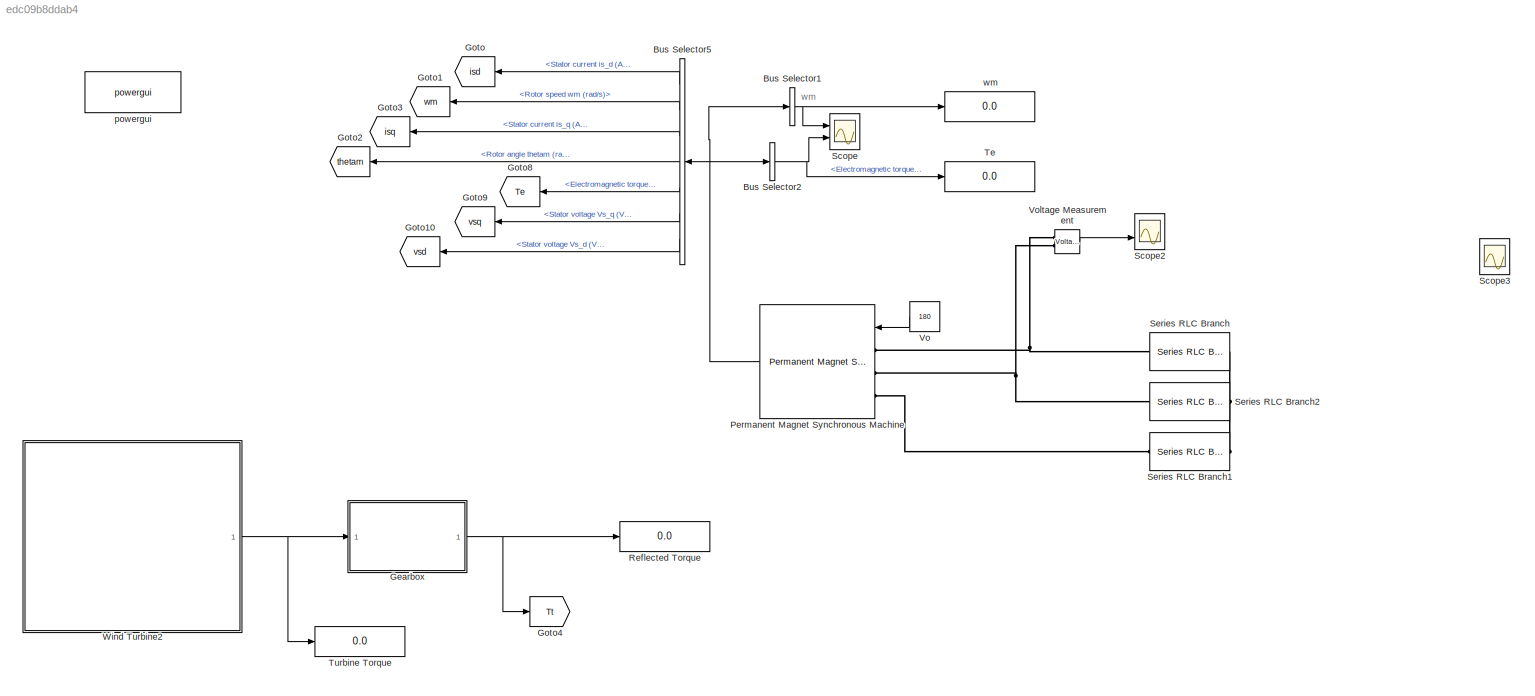
MODEL slx_edc09b8ddab4
KIND model
CONFIG AbsTol = auto
CONFIG FixedStep = auto
CONFIG MaxStep = auto
CONFIG MinStep = auto
CONFIG RelTol = 1e-3
CONFIG SampleTimeConstraint = Unconstrained
CONFIG Solver = VariableStepAuto
CONFIG SolverMode = Auto
CONFIG SolverName = VariableStepAuto
CONFIG StartTime = 0.0
CONFIG StopTime = 10.0
BLOCK [BusSelector] Bus Selector1
  OutputAsBus = on
  OutputSignals = Rotor speed wm (rad/s)
  Ports = [1, 1]
BLOCK [BusSelector] Bus Selector2
  OutputSignals = Electromagnetic torque Te (N*m)
  Ports = [1, 1]
BLOCK [BusSelector] Bus Selector5
  OutputSignals = Stator current is_d (A),Rotor speed wm (rad/s),Stator current is_q (A),Rotor angle thetam (rad),Electromagnetic torque Te (N*m),Stator voltage Vs_q (V),Stator voltage Vs_d (V)
  Ports = [1, 7]
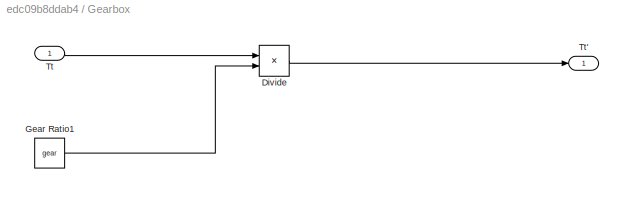
BLOCK [SubSystem] Gearbox
  Ports = [1, 1]
  RequestExecContextInheritance = off
  Variant = off
BLOCK [Product] Gearbox/Divide
  InputSameDT = off
  Inputs = */
  OutDataTypeStr = Inherit: Inherit via internal rule
  Ports = [2, 1]
  RndMeth = Floor
  SaturateOnIntegerOverflow = off
BLOCK [Constant] Gearbox/Gear Ratio1
  Value = gear
BLOCK [Inport] Gearbox/Tt
  IconDisplay = Port number
BLOCK [Outport] Gearbox/Tt'
  IconDisplay = Port number
BLOCK [Goto] Goto
  GotoTag = isd
  TagVisibility = global
BLOCK [Goto] Goto1
  GotoTag = wm
  TagVisibility = global
BLOCK [Goto] Goto10
  GotoTag = vsd
  TagVisibility = global
BLOCK [Goto] Goto2
  GotoTag = thetam
  TagVisibility = global
BLOCK [Goto] Goto3
  GotoTag = isq
  TagVisibility = global
BLOCK [Goto] Goto4
  GotoTag = Tt
  TagVisibility = global
BLOCK [Goto] Goto8
  GotoTag = Te
  TagVisibility = global
BLOCK [Goto] Goto9
  GotoTag = vsq
  TagVisibility = global
BLOCK [Reference] Permanent Magnet Synchronous Machine  REF=powerlib/Machines/Permanent Magnet
Synchronous Machine
  Ports = [1, 1, 0, 0, 0, 3]
  SourceBlock = powerlib/Machines/Permanent Magnet\nSynchronous Machine
  SourceType = Permanent Magnet Synchronous Machine
BLOCK [Display] Reflected Torque
  Decimation = 1
  Ports = [1]
BLOCK [Scope] Scope
  NumInputPorts = 2
  Ports = [2]
  ScopeSpecificationString = C++SS(StrPVP('SaveName','ScopeData1'))
BLOCK [Scope] Scope2
  NumInputPorts = 2
  Ports = [2]
  ScopeSpecificationString = Simulink.scopes.TimeScopeBlockCfg('CurrentConfiguration', extmgr.ConfigurationSet(extmgr.Configuration('Core','General UI',true),extmgr.Configuration('Core','Source UI',true),extmgr.Configuration('Sources','WiredSimulink',true,'DataLoggingVariableName','ScopeData2'),extmgr.Configuration('Visuals','Time Domain',true,'SerializedDisplays',{struct('MinYLimReal','-3838.22226','MaxYLimReal','3838.22227'...<+1431ch>
BLOCK [Scope] Scope3
  Ports = [1]
  ScopeSpecificationString = C++SS(StrPVP('SaveName','ScopeData3'))
BLOCK [Reference] Series RLC Branch  REF=powerlib/Elements/Series RLC Branch
  Ports = [0, 0, 0, 0, 0, 1, 1]
  SourceBlock = powerlib/Elements/Series RLC Branch
  SourceType = Series RLC Branch
BLOCK [Reference] Series RLC Branch1  REF=powerlib/Elements/Series RLC Branch
  Ports = [0, 0, 0, 0, 0, 1, 1]
  SourceBlock = powerlib/Elements/Series RLC Branch
  SourceType = Series RLC Branch
BLOCK [Reference] Series RLC Branch2  REF=powerlib/Elements/Series RLC Branch
  Ports = [0, 0, 0, 0, 0, 1, 1]
  SourceBlock = powerlib/Elements/Series RLC Branch
  SourceType = Series RLC Branch
BLOCK [Display] Te
  Decimation = 1
  Ports = [1]
BLOCK [Display] Turbine Torque
  Decimation = 1
  Ports = [1]
BLOCK [Constant] Vo
  Value = 180
BLOCK [Reference] Voltage Measurement  REF=powerlib/Measurements/Voltage Measurement
  Ports = [0, 1, 0, 0, 0, 2]
  SourceBlock = powerlib/Measurements/Voltage Measurement
  SourceType = Voltage Measurement
  UserDataPersistent = on
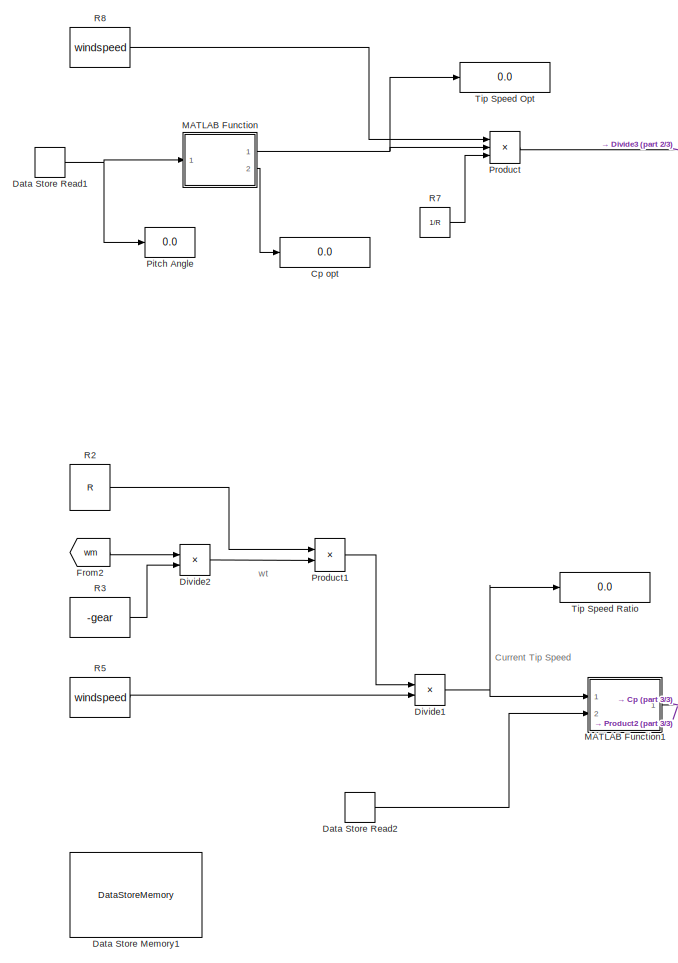
[diagram: Wind Turbine2 - part 1/3, left side, full height]
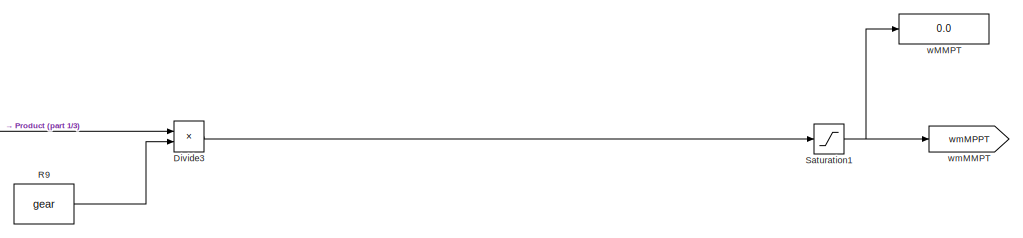
[diagram: Wind Turbine2 - part 2/3, top center region]
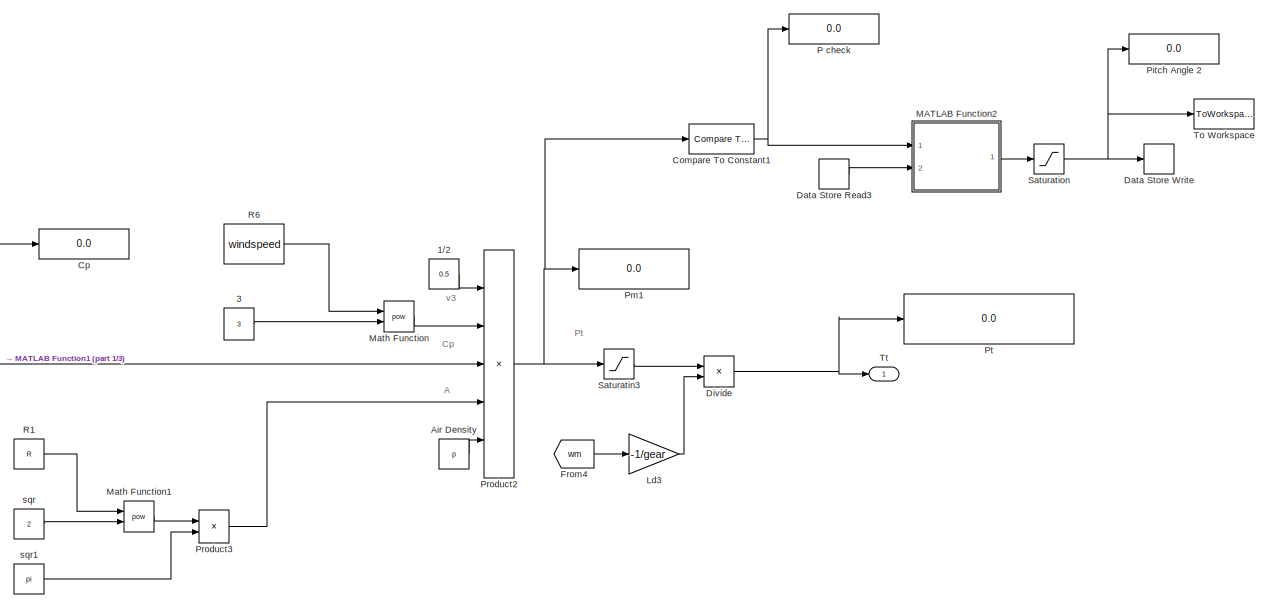
[diagram: Wind Turbine2 - part 3/3, bottom right region]
BLOCK [SubSystem] Wind Turbine2
  Ports = [0, 1]
  RequestExecContextInheritance = off
  Variant = off
BLOCK [Constant] Wind Turbine2/1//2
  Value = 0.5
BLOCK [Constant] Wind Turbine2/3
  Value = 3
BLOCK [Constant] Wind Turbine2/Air Density
  Value = p
BLOCK [Reference] Wind Turbine2/Compare To Constant1  REF=simulink/Logic and Bit
Operations/Compare
To Constant
  Ports = [1, 1]
  SourceBlock = simulink/Logic and Bit\nOperations/Compare\nTo Constant
  SourceType = Compare To Constant
BLOCK [Display] Wind Turbine2/Cp
  Decimation = 1
  Ports = [1]
BLOCK [Display] Wind Turbine2/Cp opt
  Decimation = 1
  Ports = [1]
BLOCK [DataStoreMemory] Wind Turbine2/Data Store Memory1
  DataStoreName = Beta
  OutMax = [90]
  OutMin = [0]
  ReadBeforeWriteMsg = warning
  WriteAfterReadMsg = warning
  WriteAfterWriteMsg = warning
BLOCK [DataStoreRead] Wind Turbine2/Data Store Read1
  DataStoreName = Beta
  Ports = [0, 1]
  SampleTime = Ts
BLOCK [DataStoreRead] Wind Turbine2/Data Store Read2
  DataStoreName = Beta
  Ports = [0, 1]
  SampleTime = Ts
BLOCK [DataStoreRead] Wind Turbine2/Data Store Read3
  DataStoreName = Beta
  Ports = [0, 1]
  SampleTime = Ts
BLOCK [DataStoreWrite] Wind Turbine2/Data Store Write
  DataStoreName = Beta
  Ports = [1]
BLOCK [Product] Wind Turbine2/Divide
  InputSameDT = off
  Inputs = */
  OutDataTypeStr = Inherit: Inherit via internal rule
  Ports = [2, 1]
  RndMeth = Floor
  SaturateOnIntegerOverflow = off
BLOCK [Product] Wind Turbine2/Divide1
  InputSameDT = off
  Inputs = */
  OutDataTypeStr = Inherit: Inherit via internal rule
  Ports = [2, 1]
  RndMeth = Floor
  SaturateOnIntegerOverflow = off
BLOCK [Product] Wind Turbine2/Divide2
  InputSameDT = off
  Inputs = */
  OutDataTypeStr = Inherit: Inherit via internal rule
  Ports = [2, 1]
  RndMeth = Floor
  SaturateOnIntegerOverflow = off
BLOCK [Product] Wind Turbine2/Divide3
  InputSameDT = off
  Inputs = **
  OutDataTypeStr = Inherit: Inherit via internal rule
  Ports = [2, 1]
  RndMeth = Floor
  SaturateOnIntegerOverflow = off
BLOCK [From] Wind Turbine2/From2
  GotoTag = wm
  TagVisibility = global
BLOCK [From] Wind Turbine2/From4
  GotoTag = wm
  TagVisibility = global
BLOCK [Gain] Wind Turbine2/Ld3
  Gain = -1/gear
  OutDataTypeStr = Inherit: Inherit via internal rule
  ParamDataTypeStr = Inherit: Inherit via internal rule
  SaturateOnIntegerOverflow = off
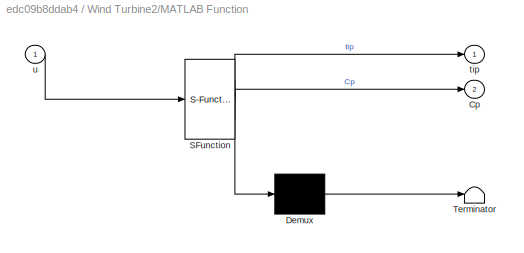
BLOCK [SubSystem] Wind Turbine2/MATLAB Function
  ErrorFcn = Stateflow.Translate.translate
  PermitHierarchicalResolution = ExplicitOnly
  Ports = [1, 2]
  RequestExecContextInheritance = off
  SFBlockType = MATLAB Function
  TreatAsAtomicUnit = on
  Variant = off
BLOCK [Demux] Wind Turbine2/MATLAB Function/ Demux 
  Outputs = 1
  Ports = [1, 1]
BLOCK [S-Function] Wind Turbine2/MATLAB Function/ SFunction 
  EnableBusSupport = on
  FunctionName = sf_sfun
  PortCounts = [1 3]
  Ports = [1, 3]
  SFunctionDeploymentMode = off
  Tag = Stateflow S-Function Fluxcheck 3
BLOCK [Terminator] Wind Turbine2/MATLAB Function/ Terminator 
BLOCK [Outport] Wind Turbine2/MATLAB Function/Cp
  IconDisplay = Port number
  Port = 2
BLOCK [Outport] Wind Turbine2/MATLAB Function/tip
  IconDisplay = Port number
BLOCK [Inport] Wind Turbine2/MATLAB Function/u
  IconDisplay = Port number
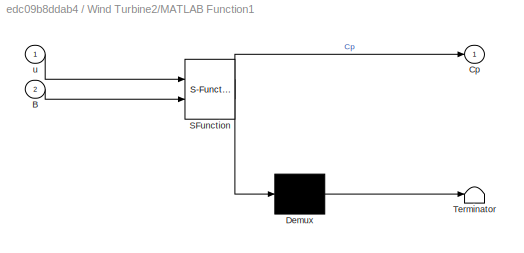
BLOCK [SubSystem] Wind Turbine2/MATLAB Function1
  ErrorFcn = Stateflow.Translate.translate
  PermitHierarchicalResolution = ExplicitOnly
  Ports = [2, 1]
  RequestExecContextInheritance = off
  SFBlockType = MATLAB Function
  TreatAsAtomicUnit = on
  Variant = off
BLOCK [Demux] Wind Turbine2/MATLAB Function1/ Demux 
  Outputs = 1
  Ports = [1, 1]
BLOCK [S-Function] Wind Turbine2/MATLAB Function1/ SFunction 
  EnableBusSupport = on
  FunctionName = sf_sfun
  PortCounts = [2 2]
  Ports = [2, 2]
  SFunctionDeploymentMode = off
  Tag = Stateflow S-Function Fluxcheck 4
BLOCK [Terminator] Wind Turbine2/MATLAB Function1/ Terminator 
BLOCK [Inport] Wind Turbine2/MATLAB Function1/B
  IconDisplay = Port number
  Port = 2
BLOCK [Outport] Wind Turbine2/MATLAB Function1/Cp
  IconDisplay = Port number
BLOCK [Inport] Wind Turbine2/MATLAB Function1/u
  IconDisplay = Port number
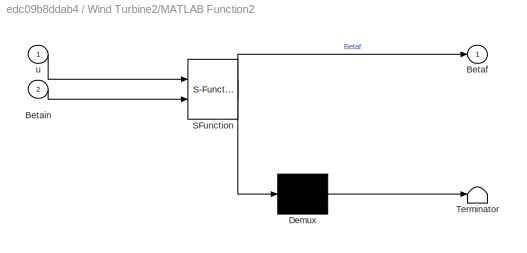
BLOCK [SubSystem] Wind Turbine2/MATLAB Function2
  ErrorFcn = Stateflow.Translate.translate
  PermitHierarchicalResolution = ExplicitOnly
  Ports = [2, 1]
  RequestExecContextInheritance = off
  SFBlockType = MATLAB Function
  TreatAsAtomicUnit = on
  Variant = off
BLOCK [Demux] Wind Turbine2/MATLAB Function2/ Demux 
  Outputs = 1
  Ports = [1, 1]
BLOCK [S-Function] Wind Turbine2/MATLAB Function2/ SFunction 
  EnableBusSupport = on
  FunctionName = sf_sfun
  PortCounts = [2 2]
  Ports = [2, 2]
  SFunctionDeploymentMode = off
  Tag = Stateflow S-Function Fluxcheck 5
BLOCK [Terminator] Wind Turbine2/MATLAB Function2/ Terminator 
BLOCK [Outport] Wind Turbine2/MATLAB Function2/Betaf
  IconDisplay = Port number
BLOCK [Inport] Wind Turbine2/MATLAB Function2/Betain
  IconDisplay = Port number
  Port = 2
BLOCK [Inport] Wind Turbine2/MATLAB Function2/u
  IconDisplay = Port number
BLOCK [Math] Wind Turbine2/Math Function
  Operator = pow
  Ports = [2, 1]
BLOCK [Math] Wind Turbine2/Math Function1
  Operator = pow
  Ports = [2, 1]
BLOCK [Display] Wind Turbine2/P check
  Decimation = 1
  Ports = [1]
BLOCK [Display] Wind Turbine2/Pitch Angle 
  Decimation = 1
  Ports = [1]
BLOCK [Display] Wind Turbine2/Pitch Angle 2
  Decimation = 1
  Ports = [1]
BLOCK [Display] Wind Turbine2/Pm1
  Decimation = 1
  Ports = [1]
BLOCK [Product] Wind Turbine2/Product
  InputSameDT = off
  Inputs = 3
  OutDataTypeStr = Inherit: Inherit via internal rule
  Ports = [3, 1]
  RndMeth = Floor
  SaturateOnIntegerOverflow = off
BLOCK [Product] Wind Turbine2/Product1
  InputSameDT = off
  OutDataTypeStr = Inherit: Inherit via internal rule
  Ports = [2, 1]
  RndMeth = Floor
  SaturateOnIntegerOverflow = off
BLOCK [Product] Wind Turbine2/Product2
  InputSameDT = off
  Inputs = 5
  OutDataTypeStr = Inherit: Inherit via internal rule
  Ports = [5, 1]
  RndMeth = Floor
  SaturateOnIntegerOverflow = off
BLOCK [Product] Wind Turbine2/Product3
  InputSameDT = off
  OutDataTypeStr = Inherit: Inherit via internal rule
  Ports = [2, 1]
  RndMeth = Floor
  SaturateOnIntegerOverflow = off
BLOCK [Display] Wind Turbine2/Pt
  Decimation = 1
  Ports = [1]
BLOCK [Constant] Wind Turbine2/R1
  Value = R
BLOCK [Constant] Wind Turbine2/R2
  Value = R
BLOCK [Constant] Wind Turbine2/R3
  Value = -gear
BLOCK [Constant] Wind Turbine2/R5
  Value = windspeed
BLOCK [Constant] Wind Turbine2/R6
  Value = windspeed
BLOCK [Constant] Wind Turbine2/R7
  Value = 1/R
BLOCK [Constant] Wind Turbine2/R8
  Value = windspeed
BLOCK [Constant] Wind Turbine2/R9
  Value = gear
BLOCK [Saturate] Wind Turbine2/Saturatin3
  InputPortMap = u0
  LowerLimit = 1e6
  Ports = [1, 1]
  UpperLimit = 2.75e6
BLOCK [Saturate] Wind Turbine2/Saturation
  InputPortMap = u0
  LowerLimit = 0
  Ports = [1, 1]
  UpperLimit = 90
BLOCK [Saturate] Wind Turbine2/Saturation1
  InputPortMap = u0
  LowerLimit = 0
  Ports = [1, 1]
  UpperLimit = 181.68
BLOCK [Display] Wind Turbine2/Tip Speed Opt 
  Decimation = 1
  Ports = [1]
BLOCK [Display] Wind Turbine2/Tip Speed Ratio 
  Decimation = 1
  Ports = [1]
BLOCK [ToWorkspace] Wind Turbine2/To Workspace
  FixptAsFi = on
  MaxDataPoints = inf
  Ports = [1]
  SampleTime = -1
  Save2DSignal = 3-D array (concatenate along third dimension)
  SaveFormat = Timeseries
  VariableName = simout
BLOCK [Outport] Wind Turbine2/Tt
  IconDisplay = Port number
BLOCK [Constant] Wind Turbine2/sqr
  Value = 2
BLOCK [Constant] Wind Turbine2/sqr1
  Value = pi
BLOCK [Display] Wind Turbine2/wMMPT 
  Decimation = 1
  Ports = [1]
BLOCK [Goto] Wind Turbine2/wmMMPT
  GotoTag = wmMPPT
  TagVisibility = global
BLOCK [Reference] powergui  REF=powerlib/powergui
  Ports = []
  Priority = 2
  SourceBlock = powerlib/powergui
  SourceType = PSB option menu block
BLOCK [Display] wm
  Decimation = 1
  Ports = [1]
ANNOTATION (root): wm
ANNOTATION Wind Turbine2: wt
ANNOTATION Wind Turbine2: A
ANNOTATION Wind Turbine2: Cp
ANNOTATION Wind Turbine2: Current Tip Speed
ANNOTATION Wind Turbine2: Pt
ANNOTATION Wind Turbine2: v3
NET Bus Selector1:1 -> Scope:1, wm:1
NET Bus Selector2:1 -> Scope:2, Te:1
LINE Bus Selector5:1 -> Goto:1
LINE Bus Selector5:2 -> Goto1:1
LINE Bus Selector5:3 -> Goto3:1
LINE Bus Selector5:4 -> Goto2:1
LINE Bus Selector5:5 -> Goto8:1
LINE Bus Selector5:6 -> Goto9:1
LINE Bus Selector5:7 -> Goto10:1
LINE Gearbox/Divide:1 -> Gearbox/Tt':1
LINE Gearbox/Gear Ratio1:1 -> Gearbox/Divide:2
LINE Gearbox/Tt:1 -> Gearbox/Divide:1
NET Gearbox:1 -> Goto4:1, Reflected Torque:1
NET Permanent Magnet Synchronous Machine:1 -> Bus Selector1:1, Bus Selector2:1, Bus Selector5:1
LINE Vo:1 -> Permanent Magnet Synchronous Machine:1
LINE Voltage Measurement:1 -> Scope2:2
LINE Wind Turbine2/1//2:1 -> Wind Turbine2/Product2:1
LINE Wind Turbine2/3:1 -> Wind Turbine2/Math Function:2
LINE Wind Turbine2/Air Density:1 -> Wind Turbine2/Product2:5
NET Wind Turbine2/Compare To Constant1:1 -> Wind Turbine2/MATLAB Function2:1, Wind Turbine2/P check:1
NET Wind Turbine2/Data Store Read1:1 -> Wind Turbine2/MATLAB Function:1, Wind Turbine2/Pitch Angle :1
LINE Wind Turbine2/Data Store Read2:1 -> Wind Turbine2/MATLAB Function1:2
LINE Wind Turbine2/Data Store Read3:1 -> Wind Turbine2/MATLAB Function2:2
NET Wind Turbine2/Divide1:1 -> Wind Turbine2/MATLAB Function1:1, Wind Turbine2/Tip Speed Ratio :1
LINE Wind Turbine2/Divide2:1 -> Wind Turbine2/Product1:2
LINE Wind Turbine2/Divide3:1 -> Wind Turbine2/Saturation1:1
NET Wind Turbine2/Divide:1 -> Wind Turbine2/Pt:1, Wind Turbine2/Tt:1
LINE Wind Turbine2/From2:1 -> Wind Turbine2/Divide2:1
LINE Wind Turbine2/From4:1 -> Wind Turbine2/Ld3:1
LINE Wind Turbine2/Ld3:1 -> Wind Turbine2/Divide:2
NET Wind Turbine2/MATLAB Function1:1 -> Wind Turbine2/Cp:1, Wind Turbine2/Product2:3
LINE Wind Turbine2/MATLAB Function2:1 -> Wind Turbine2/Saturation:1
NET Wind Turbine2/MATLAB Function:1 -> Wind Turbine2/Product:2, Wind Turbine2/Tip Speed Opt :1
LINE Wind Turbine2/MATLAB Function:2 -> Wind Turbine2/Cp opt:1
LINE Wind Turbine2/Math Function1:1 -> Wind Turbine2/Product3:1
LINE Wind Turbine2/Math Function:1 -> Wind Turbine2/Product2:2
LINE Wind Turbine2/Product1:1 -> Wind Turbine2/Divide1:1
NET Wind Turbine2/Product2:1 -> Wind Turbine2/Compare To Constant1:1, Wind Turbine2/Pm1:1, Wind Turbine2/Saturatin3:1
LINE Wind Turbine2/Product3:1 -> Wind Turbine2/Product2:4
LINE Wind Turbine2/Product:1 -> Wind Turbine2/Divide3:1
LINE Wind Turbine2/R1:1 -> Wind Turbine2/Math Function1:1
LINE Wind Turbine2/R2:1 -> Wind Turbine2/Product1:1
LINE Wind Turbine2/R3:1 -> Wind Turbine2/Divide2:2
LINE Wind Turbine2/R5:1 -> Wind Turbine2/Divide1:2
LINE Wind Turbine2/R6:1 -> Wind Turbine2/Math Function:1
LINE Wind Turbine2/R7:1 -> Wind Turbine2/Product:3
LINE Wind Turbine2/R8:1 -> Wind Turbine2/Product:1
LINE Wind Turbine2/R9:1 -> Wind Turbine2/Divide3:2
LINE Wind Turbine2/Saturatin3:1 -> Wind Turbine2/Divide:1
NET Wind Turbine2/Saturation1:1 -> Wind Turbine2/wMMPT :1, Wind Turbine2/wmMMPT:1
NET Wind Turbine2/Saturation:1 -> Wind Turbine2/Data Store Write:1, Wind Turbine2/Pitch Angle 2:1, Wind Turbine2/To Workspace:1
LINE Wind Turbine2/sqr1:1 -> Wind Turbine2/Product3:2
LINE Wind Turbine2/sqr:1 -> Wind Turbine2/Math Function1:2
NET Wind Turbine2:1 -> Gearbox:1, Turbine Torque:1
PNET net1: Permanent Magnet Synchronous Machine:LConn1 -- Series RLC Branch:RConn1 -- Voltage Measurement:LConn1
PNET net2: Permanent Magnet Synchronous Machine:LConn2 -- Series RLC Branch2:RConn1 -- Voltage Measurement:LConn2
PLINE Permanent Magnet Synchronous Machine:LConn3 -- Series RLC Branch1:RConn1
PNET net3: Series RLC Branch1:LConn1 -- Series RLC Branch2:LConn1 -- Series RLC Branch:LConn1
note: NET lines group one-source signal fan-out (src -> all destinations, sorted); 1:1 wires keep LINE; PNET lines group multi-terminal physical nets as a canonical sorted terminal list (undirected conserving connections); 2-terminal nets keep the pairwise PLINE form
CHART Wind Turbine2/MATLAB Function states=1 transitions=1
  STATE_LABEL 'eML_blk_kernel()'
  STATE_LABEL 'SCRIPT:\nfunction [tip,Cp]= fcn(u)\n\nc1 = 0.5176;\nc2 = 116;\nc3 = 0.4;\nc4 = 5;\nc5 = 21;\nc6 = 0.0068;\nB=0;\nfor i = 0.1:0.1:15\n    \nli = 1/((1/(i+0.08*u))-(0.035/(u^3+1)));\nA = c1*((c2/li-c3*u-c4)*exp(-c5/li))+c6*i ;%#codegen\n\n    if A < B\n    lopt = i;\n    break\n    else \n    B = A;\n    end\nend\ntip = i;\nCp = c1*((c2/li-c3*u-c4)*exp(-c5/li))+c6*i;\nend\n'
CHART Wind Turbine2/MATLAB Function1 states=1 transitions=1
  STATE_LABEL 'eML_blk_kernel()'
  STATE_LABEL 'SCRIPT:\nfunction Cp = fcn(u,B)\n\nc1 = 0.5176;\nc2 = 116;\nc3 = 0.4; \nc4 = 5;\nc5 = 21;\nc6 = 0.0068;\n\ni =u;\n\nli = 1/((1/(i+0.08*B))-(0.035/(B^3+1)));\n\nCp = c1*((c2/li-c3*B-c4)*exp(-c5/li))+c6*i;\n\nend\n'
CHART Wind Turbine2/MATLAB Function2 states=1 transitions=1
  STATE_LABEL 'eML_blk_kernel()'
  STATE_LABEL 'SCRIPT:\nfunction Betaf  = fcn(u,Betain)\n\n    if u ==1\n    Betaf = Betain+0.01;\n    else  \n\n    Betaf = Betain-0.01;\n    end\n \n    \n    \nend'
